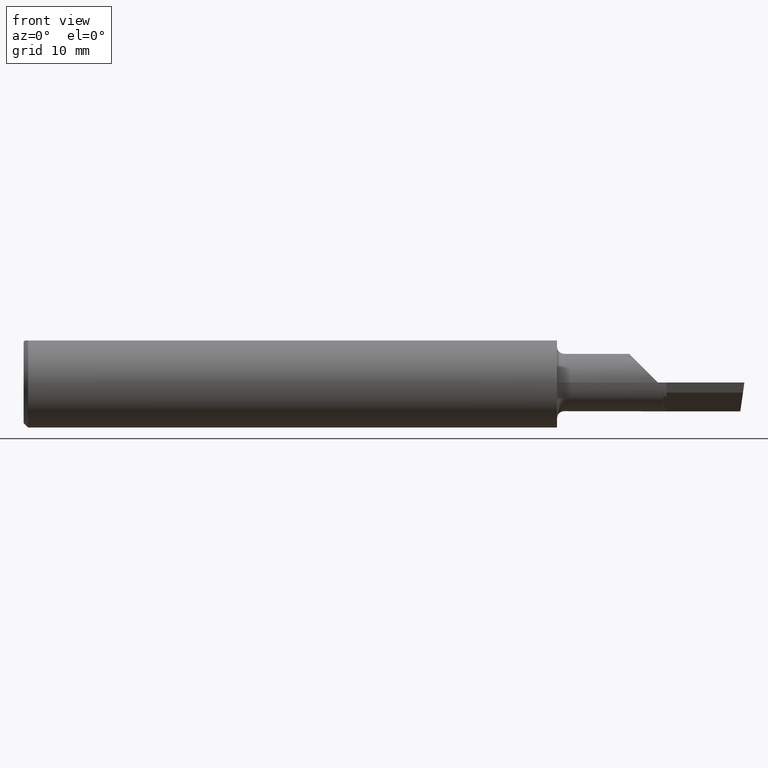
[diagram: clean part render]
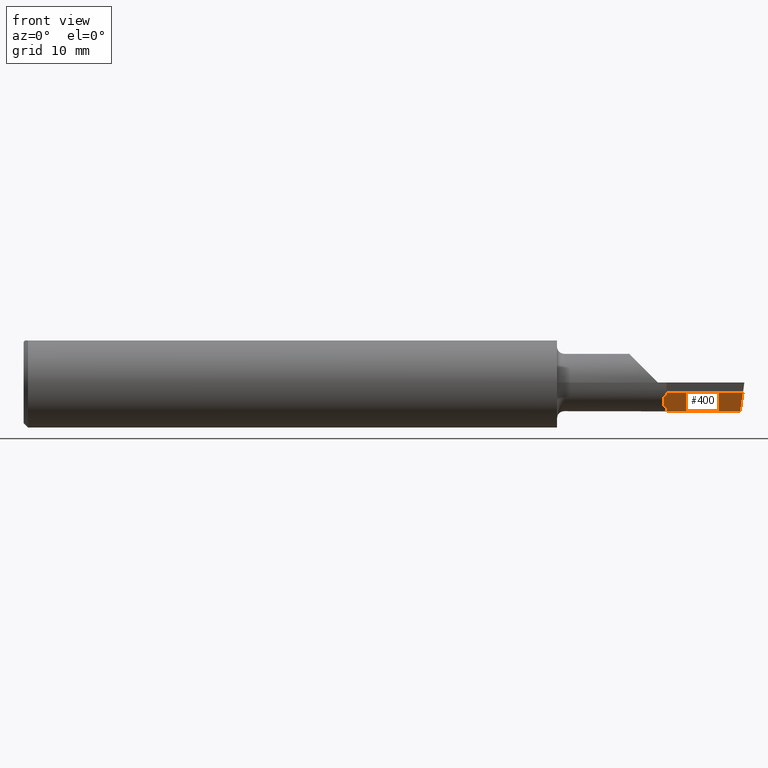
[diagram: same view with one face highlighted and labeled with its STEP entity id]
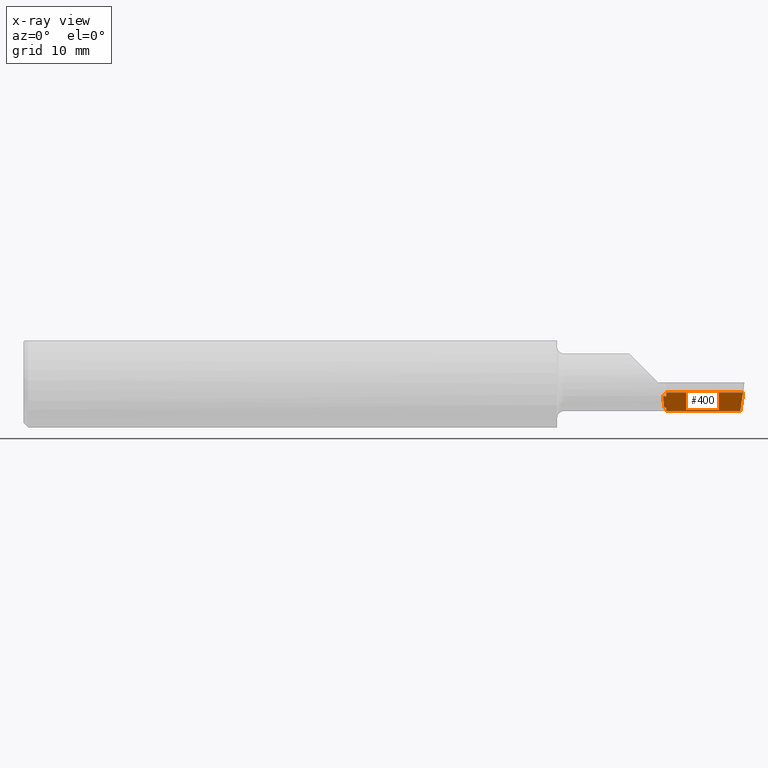
[diagram: x-ray of the same camera — body ghosted, the highlighted face saturated]
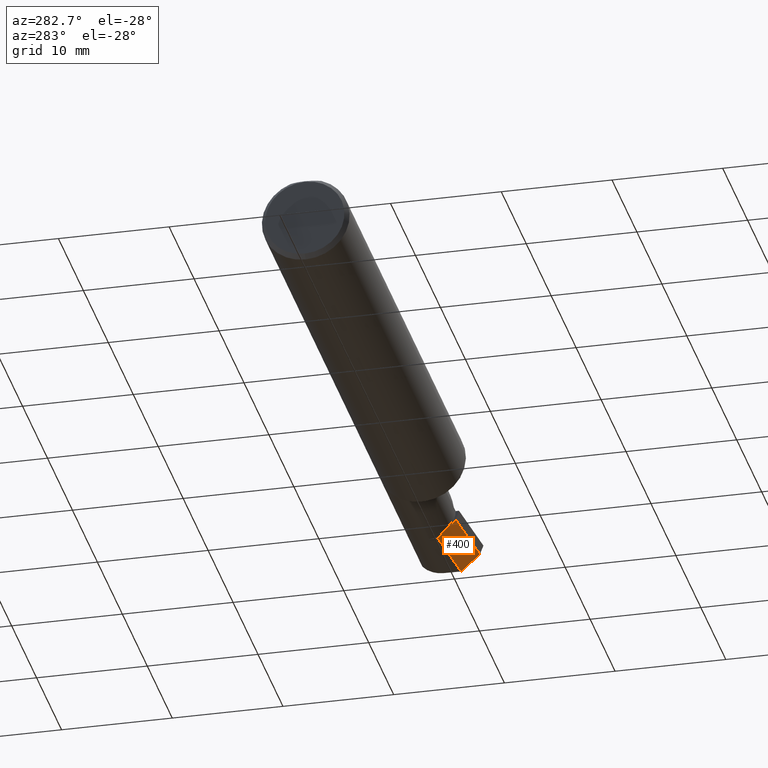
[diagram: same view with one face highlighted and labeled with its STEP entity id]
A machine part, front view. The second image highlights one B-rep face of the part: STEP entity #400.
The next image is the same camera in x-ray: the body ghosted, the highlighted face saturated — about 0% of this face is hidden behind the body in this view.
A second angle (auxiliary view) of the same face is appended — the face is thin or edge-on in the first view.
In plain terms, the highlighted planar face has unit normal (0.0684, 0.71, 0.7009).
Its self-contained STEP definition (entity closure, byte-faithful):
#2 = CARTESIAN_POINT ( 'NONE',  ( 2.229999999999999982, 0.02925656794008578421, -0.09990000000000000269 ) ) ;
#11 = CARTESIAN_POINT ( 'NONE',  ( 2.229999999999999982, -0.02114125901369682745, -0.04885090559557524192 ) ) ;
#35 = DIRECTION ( 'NONE',  ( 0.9953961983671787417, -0.09584575252022421721, -0.000000000000000000 ) ) ;
#47 = LINE ( 'NONE', #204, #672 ) ;
#48 = VERTEX_POINT ( 'NONE', #283 ) ;
#54 = EDGE_LOOP ( 'NONE', ( #490, #96, #91, #485, #688, #222, #553, #103 ) ) ;
#72 = EDGE_CURVE ( 'NONE', #185, #505, #437, .T. ) ;
#82 = CARTESIAN_POINT ( 'NONE',  ( 2.218438857550834253, -0.02249656715429233095, -0.04635048653364754606 ) ) ;
#87 = CARTESIAN_POINT ( 'NONE',  ( 2.490723658160492793, -0.02712709695662827297, -0.06821696633277901656 ) ) ;
#89 = CARTESIAN_POINT ( 'NONE',  ( 2.226335579060370495, -0.02160487824124661740, -0.04802389199779035639 ) ) ;
#91 = ORIENTED_EDGE ( 'NONE', *, *, #375, .F. ) ;
#95 = DIRECTION ( 'NONE',  ( 0.06836202603457079696, 0.7099667855717586296, 0.7009092642998473455 ) ) ;
#96 = ORIENTED_EDGE ( 'NONE', *, *, #124, .T. ) ;
#102 = CARTESIAN_POINT ( 'NONE',  ( 2.222310128493429904, 0.01770811878936147735, -0.08745229676307869626 ) ) ;
#103 = ORIENTED_EDGE ( 'NONE', *, *, #410, .F. ) ;
#120 = EDGE_CURVE ( 'NONE', #159, #596, #397, .T. ) ;
#124 = EDGE_CURVE ( 'NONE', #159, #472, #625, .T. ) ;
#126 = DIRECTION ( 'NONE',  ( -0.9953961983671787417, 0.09584575252022423109, -0.000000000000000000 ) ) ;
#137 = CARTESIAN_POINT ( 'NONE',  ( 2.222310128493429904, 0.01770811878936147735, -0.08745229676307869626 ) ) ;
#141 = CARTESIAN_POINT ( 'NONE',  ( 2.217369785204464261, -0.03359930797873920960, -0.03499999999999993394 ) ) ;
#142 = CARTESIAN_POINT ( 'NONE',  ( 2.486122571438858397, 0.004594769314331973060, -0.09990000000000000269 ) ) ;
#147 = CARTESIAN_POINT ( 'NONE',  ( 2.217369785204464261, -0.03359930797873920960, -0.03499999999999993394 ) ) ;
#159 = VERTEX_POINT ( 'NONE', #142 ) ;
#175 = VECTOR ( 'NONE', #237, 39.37007874015748854 ) ;
#181 = CARTESIAN_POINT ( 'NONE',  ( 2.222481604588531390, -0.02205667813890352727, -0.04719036267523941258 ) ) ;
#185 = VERTEX_POINT ( 'NONE', #470 ) ;
#204 = CARTESIAN_POINT ( 'NONE',  ( 2.229999999999999982, -0.06272190053731417636, -0.006732936968033727092 ) ) ;
#206 = CARTESIAN_POINT ( 'NONE',  ( 2.217369785204464261, -0.03359930797873920960, -0.03499999999999993394 ) ) ;
#216 =( BOUNDED_CURVE ( )  B_SPLINE_CURVE ( 3, ( #309, #258, #311, #102 ),
 .UNSPECIFIED., .F., .F. ) 
 B_SPLINE_CURVE_WITH_KNOTS ( ( 4, 4 ),
 ( 3.409630382672708571, 3.428873477936119851 ),
 .UNSPECIFIED. ) 
 CURVE ( )  GEOMETRIC_REPRESENTATION_ITEM ( )  RATIONAL_B_SPLINE_CURVE ( ( 1.000000000000000000, 0.9999691421784444589, 0.9999691421784444589, 1.000000000000000000 ) ) 
 REPRESENTATION_ITEM ( '' )  );
#222 = ORIENTED_EDGE ( 'NONE', *, *, #480, .F. ) ;
#237 = DIRECTION ( 'NONE',  ( -2.399084424743908463E-18, -0.7025528302622680021, 0.7116315905652844664 ) ) ;
#258 = CARTESIAN_POINT ( 'NONE',  ( 2.227523279994489069, 0.01658920591323151741, -0.08682738081222335369 ) ) ;
#262 = CARTESIAN_POINT ( 'NONE',  ( 2.229999999999999982, 0.01603431065556222557, -0.08650687769382926773 ) ) ;
#283 = CARTESIAN_POINT ( 'NONE',  ( 2.229999999999999982, -0.03481545933993181879, -0.03499999999999993394 ) ) ;
#309 = CARTESIAN_POINT ( 'NONE',  ( 2.229999999999999982, 0.01603431065556222557, -0.08650687769382926773 ) ) ;
#311 = CARTESIAN_POINT ( 'NONE',  ( 2.224959910392296791, 0.01714715917505345300, -0.08714253022679756266 ) ) ;
#314 = CARTESIAN_POINT ( 'NONE',  ( 2.229999999999999982, -0.02114125901369682745, -0.04885090559557524192 ) ) ;
#321 = EDGE_CURVE ( 'NONE', #505, #48, #630, .T. ) ;
#368 = LINE ( 'NONE', #206, #565 ) ;
#375 = EDGE_CURVE ( 'NONE', #48, #472, #626, .T. ) ;
#384 = VERTEX_POINT ( 'NONE', #137 ) ;
#397 = LINE ( 'NONE', #615, #695 ) ;
#400 = ADVANCED_FACE ( 'NONE', ( #584 ), #585, .F. ) ;
#410 = EDGE_CURVE ( 'NONE', #596, #436, #47, .T. ) ;
#429 = DIRECTION ( 'NONE',  ( -0.06717917588521571393, -0.6976824170844041495, 0.7132504491541850067 ) ) ;
#436 = VERTEX_POINT ( 'NONE', #262 ) ;
#437 =( BOUNDED_CURVE ( )  B_SPLINE_CURVE ( 3, ( #82, #181, #89, #11 ),
 .UNSPECIFIED., .F., .F. ) 
 B_SPLINE_CURVE_WITH_KNOTS ( ( 4, 4 ),
 ( 2.845084404038394688, 2.873554924506877217 ),
 .UNSPECIFIED. ) 
 CURVE ( )  GEOMETRIC_REPRESENTATION_ITEM ( )  RATIONAL_B_SPLINE_CURVE ( ( 1.000000000000000000, 0.9999324535960144589, 0.9999324535960144589, 1.000000000000000000 ) ) 
 REPRESENTATION_ITEM ( '' )  );
#441 = EDGE_CURVE ( 'NONE', #436, #384, #216, .T. ) ;
#469 = CARTESIAN_POINT ( 'NONE',  ( 2.229999999999999982, -0.06272190053731417636, -0.006732936968033727092 ) ) ;
#470 = CARTESIAN_POINT ( 'NONE',  ( 2.218438857550834253, -0.02249656715429233095, -0.04635048653364754606 ) ) ;
#472 = VERTEX_POINT ( 'NONE', #478 ) ;
#478 = CARTESIAN_POINT ( 'NONE',  ( 2.495547506291072359, -0.06038477597192914298, -0.03499999999999993394 ) ) ;
#480 = EDGE_CURVE ( 'NONE', #384, #185, #368, .T. ) ;
#485 = ORIENTED_EDGE ( 'NONE', *, *, #321, .F. ) ;
#490 = ORIENTED_EDGE ( 'NONE', *, *, #120, .F. ) ;
#505 = VERTEX_POINT ( 'NONE', #314 ) ;
#515 = DIRECTION ( 'NONE',  ( 0.1020886612874969263, -0.7038430390621321919, 0.7029814233678641777 ) ) ;
#529 = AXIS2_PLACEMENT_3D ( 'NONE', #147, #95, #639 ) ;
#553 = ORIENTED_EDGE ( 'NONE', *, *, #441, .F. ) ;
#565 = VECTOR ( 'NONE', #429, 39.37007874015748854 ) ;
#584 = FACE_OUTER_BOUND ( 'NONE', #54, .T. ) ;
#585 = PLANE ( 'NONE',  #529 ) ;
#590 = DIRECTION ( 'NONE',  ( -2.399084424743908463E-18, -0.7025528302622680021, 0.7116315905652844664 ) ) ;
#596 = VERTEX_POINT ( 'NONE', #2 ) ;
#609 = VECTOR ( 'NONE', #35, 39.37007874015748143 ) ;
#615 = CARTESIAN_POINT ( 'NONE',  ( 2.494014181086415149, 0.003834893732622184082, -0.09990000000000000269 ) ) ;
#625 = LINE ( 'NONE', #87, #635 ) ;
#626 = LINE ( 'NONE', #141, #609 ) ;
#630 = LINE ( 'NONE', #469, #175 ) ;
#635 = VECTOR ( 'NONE', #515, 39.37007874015748854 ) ;
#639 = DIRECTION ( 'NONE',  ( 0.000000000000000000, -0.7025528302622680021, 0.7116315905652844664 ) ) ;
#672 = VECTOR ( 'NONE', #590, 39.37007874015748854 ) ;
#688 = ORIENTED_EDGE ( 'NONE', *, *, #72, .F. ) ;
#695 = VECTOR ( 'NONE', #126, 39.37007874015748143 ) ;